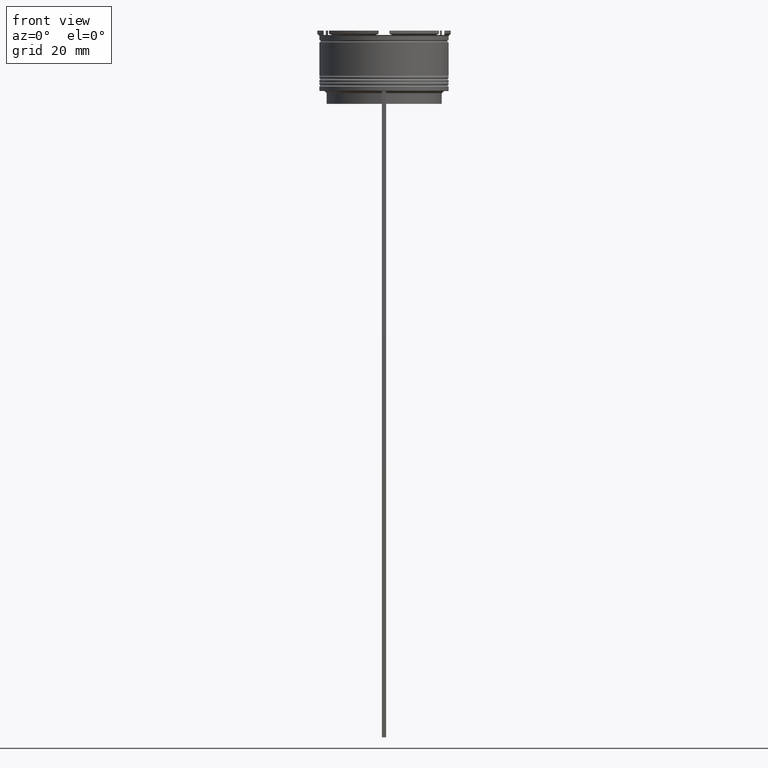
[diagram: clean part render]
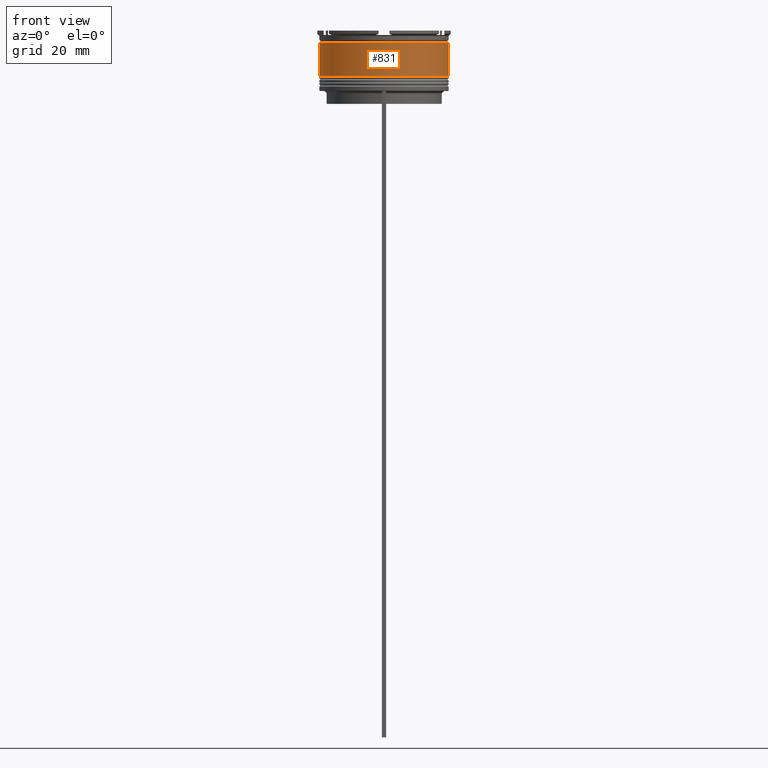
[diagram: same view with one face highlighted and labeled with its STEP entity id]
A machine part, front view. The second image highlights one B-rep face of the part: STEP entity #831.
In plain terms, the highlighted cylindrical surface (partial cylindrical patch) has radius 15 mm, axis along (-0, -0, 1).
Its self-contained STEP definition (entity closure, byte-faithful):
#9 = AXIS2_PLACEMENT_3D ( 'NONE', #2453, #1774, #1347 ) ;
#158 = DIRECTION ( 'NONE',  ( -0.000000000000000000, -0.000000000000000000, 1.000000000000000000 ) ) ;
#244 = VECTOR ( 'NONE', #853, 1000.000000000000000 ) ;
#352 = CARTESIAN_POINT ( 'NONE',  ( -15.00000000000000000, 1.836970198721029589E-15, 0.000000000000000000 ) ) ;
#556 = DIRECTION ( 'NONE',  ( -0.000000000000000000, -0.000000000000000000, 1.000000000000000000 ) ) ;
#591 = DIRECTION ( 'NONE',  ( 1.000000000000000000, 0.000000000000000000, 0.000000000000000000 ) ) ;
#664 = LINE ( 'NONE', #1327, #244 ) ;
#744 = ORIENTED_EDGE ( 'NONE', *, *, #2152, .F. ) ;
#800 = AXIS2_PLACEMENT_3D ( 'NONE', #1465, #158, #591 ) ;
#831 = ADVANCED_FACE ( 'NONE', ( #1995 ), #885, .T. ) ;
#839 = CIRCLE ( 'NONE', #2433, 14.99999999999999822 ) ;
#853 = DIRECTION ( 'NONE',  ( -0.000000000000000000, -0.000000000000000000, 1.000000000000000000 ) ) ;
#885 = CYLINDRICAL_SURFACE ( 'NONE', #9, 15.00000000000000000 ) ;
#1150 = ORIENTED_EDGE ( 'NONE', *, *, #2332, .T. ) ;
#1248 = VECTOR ( 'NONE', #556, 1000.000000000000000 ) ;
#1327 = CARTESIAN_POINT ( 'NONE',  ( 15.00000000000000000, 0.000000000000000000, 0.000000000000000000 ) ) ;
#1347 = DIRECTION ( 'NONE',  ( 1.000000000000000000, 0.000000000000000000, 0.000000000000000000 ) ) ;
#1465 = CARTESIAN_POINT ( 'NONE',  ( 0.000000000000000000, 0.000000000000000000, -10.50000000000000178 ) ) ;
#1472 = EDGE_CURVE ( 'NONE', #2256, #1802, #2564, .T. ) ;
#1606 = CARTESIAN_POINT ( 'NONE',  ( 0.000000000000000000, 0.000000000000000000, -2.699999999999999734 ) ) ;
#1774 = DIRECTION ( 'NONE',  ( -0.000000000000000000, -0.000000000000000000, 1.000000000000000000 ) ) ;
#1778 = ORIENTED_EDGE ( 'NONE', *, *, #1472, .F. ) ;
#1802 = VERTEX_POINT ( 'NONE', #2258 ) ;
#1968 = VERTEX_POINT ( 'NONE', #2164 ) ;
#1995 = FACE_OUTER_BOUND ( 'NONE', #2021, .T. ) ;
#2021 = EDGE_LOOP ( 'NONE', ( #1778, #1150, #2259, #744 ) ) ;
#2152 = EDGE_CURVE ( 'NONE', #1802, #2415, #839, .T. ) ;
#2164 = CARTESIAN_POINT ( 'NONE',  ( 15.00000000000000178, 0.000000000000000000, -10.50000000000000178 ) ) ;
#2172 = CARTESIAN_POINT ( 'NONE',  ( -15.00000000000000355, 1.836970198721029983E-15, -10.50000000000000178 ) ) ;
#2256 = VERTEX_POINT ( 'NONE', #2172 ) ;
#2258 = CARTESIAN_POINT ( 'NONE',  ( -14.99999999999999822, 1.836970198721029194E-15, -2.699999999999999734 ) ) ;
#2259 = ORIENTED_EDGE ( 'NONE', *, *, #2834, .T. ) ;
#2332 = EDGE_CURVE ( 'NONE', #2256, #1968, #2847, .T. ) ;
#2335 = DIRECTION ( 'NONE',  ( 1.000000000000000000, 0.000000000000000000, 0.000000000000000000 ) ) ;
#2415 = VERTEX_POINT ( 'NONE', #2439 ) ;
#2433 = AXIS2_PLACEMENT_3D ( 'NONE', #1606, #2786, #2335 ) ;
#2439 = CARTESIAN_POINT ( 'NONE',  ( 14.99999999999999822, 0.000000000000000000, -2.699999999999999734 ) ) ;
#2453 = CARTESIAN_POINT ( 'NONE',  ( 0.000000000000000000, 0.000000000000000000, 0.000000000000000000 ) ) ;
#2564 = LINE ( 'NONE', #352, #1248 ) ;
#2786 = DIRECTION ( 'NONE',  ( -0.000000000000000000, -0.000000000000000000, 1.000000000000000000 ) ) ;
#2834 = EDGE_CURVE ( 'NONE', #1968, #2415, #664, .T. ) ;
#2847 = CIRCLE ( 'NONE', #800, 15.00000000000000178 ) ;